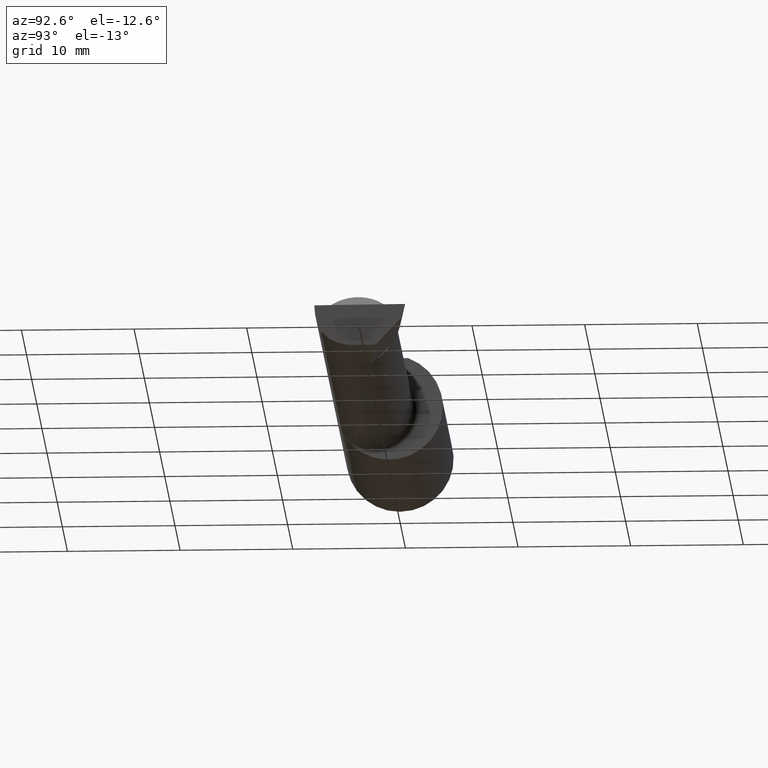
[diagram: clean part render]
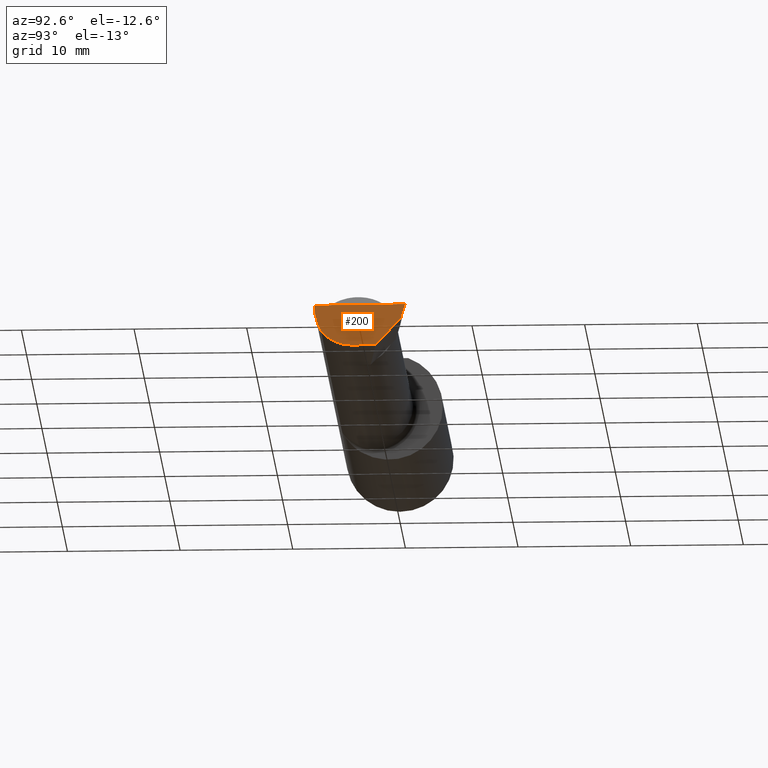
[diagram: same view with one face highlighted and labeled with its STEP entity id]
A machine part, auxiliary view. The second image highlights one B-rep face of the part: STEP entity #200.
In plain terms, the highlighted planar face has unit normal (-0.9922, 0.026, 0.1219).
Its self-contained STEP definition (entity closure, byte-faithful):
#9 = CARTESIAN_POINT ( 'NONE',  ( 2.477873865042410806, -0.05739999999999999963, -0.1400500000000000633 ) ) ;
#12 = VECTOR ( 'NONE', #568, 39.37007874015748854 ) ;
#48 = VECTOR ( 'NONE', #377, 39.37007874015748143 ) ;
#57 = CARTESIAN_POINT ( 'NONE',  ( 2.481080296960508580, -0.1635956445993030639, -0.09130436773856169530 ) ) ;
#60 = CARTESIAN_POINT ( 'NONE',  ( 2.481080296960508580, -0.1635956445993030639, -0.09130436773856169530 ) ) ;
#67 = DIRECTION ( 'NONE',  ( 0.1219104985251942275, 0.000000000000000000, 0.9925410975618785825 ) ) ;
#79 = VECTOR ( 'NONE', #262, 39.37007874015748143 ) ;
#89 = ORIENTED_EDGE ( 'NONE', *, *, #392, .F. ) ;
#96 = EDGE_CURVE ( 'NONE', #201, #603, #588, .T. ) ;
#107 = CARTESIAN_POINT ( 'NONE',  ( 2.481080296960508580, -0.1635956445993030639, -0.09130436773856169530 ) ) ;
#130 = CARTESIAN_POINT ( 'NONE',  ( 2.493766568580444432, 0.1168246249203733628, -0.04780233936830585728 ) ) ;
#133 =( BOUNDED_CURVE ( )  B_SPLINE_CURVE ( 3, ( #57, #250, #453, #549 ),
 .UNSPECIFIED., .F., .T. ) 
 B_SPLINE_CURVE_WITH_KNOTS ( ( 4, 4 ),
 ( 0.8516985021657653698, 1.360746882515200484 ),
 .UNSPECIFIED. ) 
 CURVE ( )  GEOMETRIC_REPRESENTATION_ITEM ( )  RATIONAL_B_SPLINE_CURVE ( ( 1.000000000000000000, 0.9785221379938656705, 0.9785221379938656705, 1.000000000000000000 ) ) 
 REPRESENTATION_ITEM ( '' )  );
#149 = EDGE_LOOP ( 'NONE', ( #484, #89, #551, #410, #457, #243 ) ) ;
#197 = VERTEX_POINT ( 'NONE', #209 ) ;
#200 = ADVANCED_FACE ( 'NONE', ( #402 ), #499, .F. ) ;
#201 = VERTEX_POINT ( 'NONE', #459 ) ;
#209 = CARTESIAN_POINT ( 'NONE',  ( 2.480058035321255794, 0.02601009779168069955, -0.1400500000000000633 ) ) ;
#216 = CARTESIAN_POINT ( 'NONE',  ( 2.476787929832031221, -0.09887019258091189755, -0.1400500000000000078 ) ) ;
#226 = CARTESIAN_POINT ( 'NONE',  ( 2.490039159128059953, -0.2497391662021650194, 6.932588350567417155E-17 ) ) ;
#240 = VERTEX_POINT ( 'NONE', #273 ) ;
#243 = ORIENTED_EDGE ( 'NONE', *, *, #540, .F. ) ;
#249 = CARTESIAN_POINT ( 'NONE',  ( 2.500188977433779769, 0.1311105994646662165, 0.001440373173041438384 ) ) ;
#250 = CARTESIAN_POINT ( 'NONE',  ( 2.484117089522337452, -0.1792580844883771285, -0.06324101202936134591 ) ) ;
#259 = CARTESIAN_POINT ( 'NONE',  ( 2.477925907309857401, -0.1365595166907236646, -0.1227499502647107360 ) ) ;
#262 = DIRECTION ( 'NONE',  ( 0.1240019227988267692, 0.3022330132596589558, 0.9451342385281472636 ) ) ;
#273 = CARTESIAN_POINT ( 'NONE',  ( 2.477873865042410806, -0.05739999999999999963, -0.1400500000000000633 ) ) ;
#287 = VERTEX_POINT ( 'NONE', #370 ) ;
#308 = CARTESIAN_POINT ( 'NONE',  ( 2.475850273311264615, -0.1244607267090816621, -0.1422282308645907711 ) ) ;
#317 = EDGE_CURVE ( 'NONE', #197, #201, #373, .T. ) ;
#323 = VECTOR ( 'NONE', #559, 39.37007874015748854 ) ;
#334 = AXIS2_PLACEMENT_3D ( 'NONE', #308, #504, #67 ) ;
#357 = EDGE_CURVE ( 'NONE', #287, #603, #515, .T. ) ;
#370 = CARTESIAN_POINT ( 'NONE',  ( 2.491672876940991710, -0.1873499999999999888, 6.915950918908297591E-17 ) ) ;
#373 = LINE ( 'NONE', #130, #323 ) ;
#377 = DIRECTION ( 'NONE',  ( -0.02617694830779365364, -0.9996573249755593693, -8.535148296544462419E-17 ) ) ;
#392 = EDGE_CURVE ( 'NONE', #197, #240, #427, .T. ) ;
#402 = FACE_OUTER_BOUND ( 'NONE', #149, .T. ) ;
#410 = ORIENTED_EDGE ( 'NONE', *, *, #96, .T. ) ;
#420 =( BOUNDED_CURVE ( )  B_SPLINE_CURVE ( 3, ( #60, #259, #216, #9 ),
 .UNSPECIFIED., .F., .F. ) 
 B_SPLINE_CURVE_WITH_KNOTS ( ( 4, 4 ),
 ( 5.632580117768154260, 6.493234751459282528 ),
 .UNSPECIFIED. ) 
 CURVE ( )  GEOMETRIC_REPRESENTATION_ITEM ( )  RATIONAL_B_SPLINE_CURVE ( ( 1.000000000000000000, 0.9392195014330942948, 0.9392195014330942948, 1.000000000000000000 ) ) 
 REPRESENTATION_ITEM ( '' )  );
#427 = LINE ( 'NONE', #618, #48 ) ;
#453 = CARTESIAN_POINT ( 'NONE',  ( 2.487725449370724817, -0.1873500000000000443, -0.03213820089768505694 ) ) ;
#457 = ORIENTED_EDGE ( 'NONE', *, *, #357, .F. ) ;
#459 = CARTESIAN_POINT ( 'NONE',  ( 2.493439983562941720, 0.1146611065212078395, -0.04999999999999999584 ) ) ;
#484 = ORIENTED_EDGE ( 'NONE', *, *, #488, .T. ) ;
#488 = EDGE_CURVE ( 'NONE', #577, #240, #420, .T. ) ;
#499 = PLANE ( 'NONE',  #334 ) ;
#504 = DIRECTION ( 'NONE',  ( -0.9922060308645608284, 0.02598182930461468559, 0.1218693434050591162 ) ) ;
#515 = LINE ( 'NONE', #226, #12 ) ;
#540 = EDGE_CURVE ( 'NONE', #577, #287, #133, .T. ) ;
#546 = CARTESIAN_POINT ( 'NONE',  ( 2.499999999999978684, 0.1306500000000237749, 8.405341369881224661E-14 ) ) ;
#549 = CARTESIAN_POINT ( 'NONE',  ( 2.491672876940991710, -0.1873499999999999888, 6.915950918908297591E-17 ) ) ;
#551 = ORIENTED_EDGE ( 'NONE', *, *, #317, .T. ) ;
#559 = DIRECTION ( 'NONE',  ( 0.1053106618240634978, 0.6976485211320199165, 0.7086580314005359593 ) ) ;
#568 = DIRECTION ( 'NONE',  ( 0.02617694830779364323, 0.9996573249755593693, -2.665804247635780349E-18 ) ) ;
#577 = VERTEX_POINT ( 'NONE', #107 ) ;
#588 = LINE ( 'NONE', #249, #79 ) ;
#603 = VERTEX_POINT ( 'NONE', #546 ) ;
#618 = CARTESIAN_POINT ( 'NONE',  ( 2.477889026591898247, -0.05682100378451882677, -0.1400500000000000633 ) ) ;